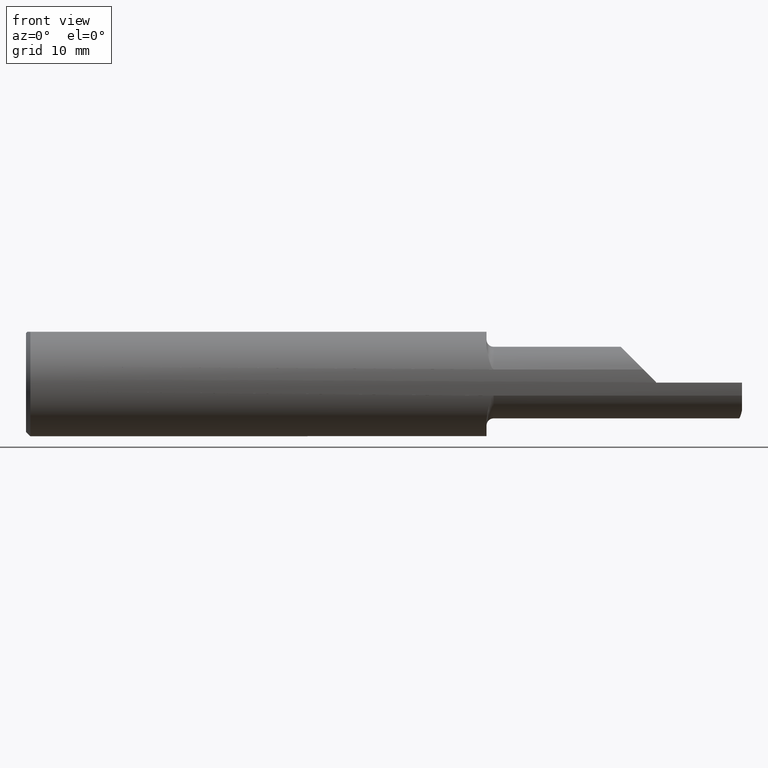
[diagram: clean part render]
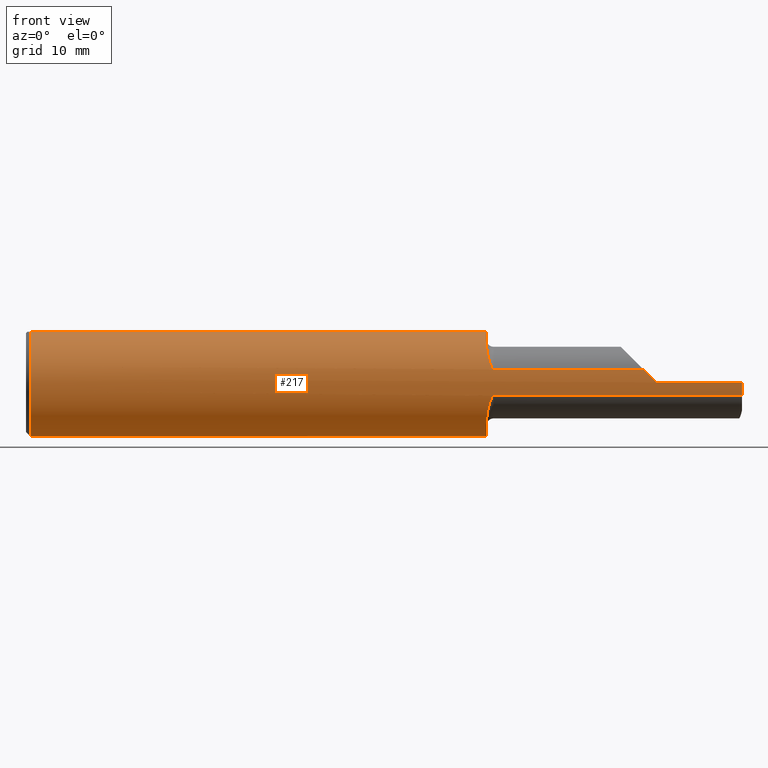
[diagram: same view with one face highlighted and labeled with its STEP entity id]
A machine part, front view. The second image highlights one B-rep face of the part: STEP entity #217.
In plain terms, the highlighted cylindrical surface (partial cylindrical patch) has radius 4.7587 mm, axis along (-1, -0, -0).
Its self-contained STEP definition (entity closure, byte-faithful):
#14 = DIRECTION ( 'NONE',  ( 1.000000000000000000, 0.000000000000000000, 0.000000000000000000 ) ) ;
#30 = EDGE_CURVE ( 'NONE', #373, #717, #626, .T. ) ;
#35 = CARTESIAN_POINT ( 'NONE',  ( 2.200000000000000178, 0.000000000000000000, 0.000000000000000000 ) ) ;
#58 = CARTESIAN_POINT ( 'NONE',  ( 2.155609336774261919, -0.1816805279265492068, 0.04574066322573761001 ) ) ;
#63 = CARTESIAN_POINT ( 'NONE',  ( 1.617242766001949938, -0.1712683263405276046, -0.07645797409013629919 ) ) ;
#74 = CARTESIAN_POINT ( 'NONE',  ( 1.625471878265903669, -0.1794901087543955276, -0.05373940346778428856 ) ) ;
#78 = DIRECTION ( 'NONE',  ( 0.000000000000000000, 0.000000000000000000, -1.000000000000000000 ) ) ;
#85 = LINE ( 'NONE', #121, #283 ) ;
#121 = CARTESIAN_POINT ( 'NONE',  ( 2.500000000000000000, 0.06039039658753697637, 0.1773499999999999799 ) ) ;
#123 = ORIENTED_EDGE ( 'NONE', *, *, #181, .F. ) ;
#129 =( BOUNDED_CURVE ( )  B_SPLINE_CURVE ( 3, ( #237, #215, #759, #58 ),
 .UNSPECIFIED., .F., .T. ) 
 B_SPLINE_CURVE_WITH_KNOTS ( ( 4, 4 ),
 ( 4.719594807355369959, 4.959027430676237636 ),
 .UNSPECIFIED. ) 
 CURVE ( )  GEOMETRIC_REPRESENTATION_ITEM ( )  RATIONAL_B_SPLINE_CURVE ( ( 1.000000000000000000, 0.9952283712403751093, 0.9952283712403751093, 1.000000000000000000 ) ) 
 REPRESENTATION_ITEM ( '' )  );
#131 = ORIENTED_EDGE ( 'NONE', *, *, #768, .F. ) ;
#137 = CARTESIAN_POINT ( 'NONE',  ( 1.631817590302756749, -0.1816805279265500950, -0.04574066322574452809 ) ) ;
#146 = CARTESIAN_POINT ( 'NONE',  ( 1.608000000000000096, -0.1358364408402822077, -0.1293653927267006953 ) ) ;
#147 = ORIENTED_EDGE ( 'NONE', *, *, #369, .F. ) ;
#165 = DIRECTION ( 'NONE',  ( 1.000000000000000000, 0.000000000000000000, 0.000000000000000000 ) ) ;
#173 = CARTESIAN_POINT ( 'NONE',  ( 1.610356402887169525, -0.1533523090637235464, 0.1080176704948173638 ) ) ;
#181 = EDGE_CURVE ( 'NONE', #845, #520, #899, .T. ) ;
#199 = CARTESIAN_POINT ( 'NONE',  ( 2.200000000000000178, -0.1873451360457484560, 0.001349999999999087824 ) ) ;
#214 = VERTEX_POINT ( 'NONE', #613 ) ;
#215 = CARTESIAN_POINT ( 'NONE',  ( 2.185011993843769318, -0.1872371331974334585, 0.01633800615622983676 ) ) ;
#217 = ADVANCED_FACE ( 'NONE', ( #756 ), #466, .T. ) ;
#224 = CARTESIAN_POINT ( 'NONE',  ( 1.615157939458078395, -0.1674139084628467611, -0.08459198811596614631 ) ) ;
#237 = CARTESIAN_POINT ( 'NONE',  ( 2.200000000000000178, -0.1873451360457484560, 0.001349999999999087824 ) ) ;
#241 = CARTESIAN_POINT ( 'NONE',  ( 1.631803717416865807, -0.1816805279265493456, 0.04574066322573741572 ) ) ;
#242 = CARTESIAN_POINT ( 'NONE',  ( 2.500000000000000000, -0.1873499999999999610, -3.979970649922724610E-17 ) ) ;
#248 = CARTESIAN_POINT ( 'NONE',  ( 1.626447111503740217, -0.1800702390342965031, 0.05175562241491477034 ) ) ;
#250 = AXIS2_PLACEMENT_3D ( 'NONE', #295, #605, #780 ) ;
#252 = ORIENTED_EDGE ( 'NONE', *, *, #936, .T. ) ;
#259 = DIRECTION ( 'NONE',  ( 0.000000000000000000, 0.000000000000000000, -1.000000000000000000 ) ) ;
#263 = ORIENTED_EDGE ( 'NONE', *, *, #791, .T. ) ;
#275 = DIRECTION ( 'NONE',  ( 0.000000000000000000, 0.000000000000000000, -1.000000000000000000 ) ) ;
#283 = VECTOR ( 'NONE', #980, 39.37007874015748143 ) ;
#291 = EDGE_CURVE ( 'NONE', #845, #373, #800, .T. ) ;
#295 = CARTESIAN_POINT ( 'NONE',  ( 2.500000000000000000, 0.000000000000000000, 0.000000000000000000 ) ) ;
#297 = CARTESIAN_POINT ( 'NONE',  ( 2.500000000000000000, -0.06039039658753697637, 0.1773499999999999799 ) ) ;
#300 = CARTESIAN_POINT ( 'NONE',  ( 2.500000000000000000, 0.000000000000000000, 0.000000000000000000 ) ) ;
#304 = AXIS2_PLACEMENT_3D ( 'NONE', #300, #534, #311 ) ;
#310 = VERTEX_POINT ( 'NONE', #333 ) ;
#311 = DIRECTION ( 'NONE',  ( 0.000000000000000000, 0.000000000000000000, -1.000000000000000000 ) ) ;
#314 = VERTEX_POINT ( 'NONE', #861 ) ;
#325 = CARTESIAN_POINT ( 'NONE',  ( 2.200000000000000178, -0.1873499999999999888, -3.979970649922726459E-17 ) ) ;
#333 = CARTESIAN_POINT ( 'NONE',  ( 1.632999999999999785, -0.1816805279265493456, -0.04574066322573741572 ) ) ;
#351 = CARTESIAN_POINT ( 'NONE',  ( 1.632999999999999785, -0.1816805279265493456, 0.04574066322573741572 ) ) ;
#356 = ORIENTED_EDGE ( 'NONE', *, *, #291, .T. ) ;
#367 = CARTESIAN_POINT ( 'NONE',  ( 0.01499999999999970281, 0.000000000000000000, 0.000000000000000000 ) ) ;
#369 = EDGE_CURVE ( 'NONE', #532, #214, #401, .T. ) ;
#373 = VERTEX_POINT ( 'NONE', #325 ) ;
#375 = CARTESIAN_POINT ( 'NONE',  ( 1.607999999999999874, -0.1290791507268553850, 0.1357887894770173631 ) ) ;
#379 = CARTESIAN_POINT ( 'NONE',  ( 1.628366350430950238, -0.1808668743673179924, -0.04886876118085551474 ) ) ;
#381 = CARTESIAN_POINT ( 'NONE',  ( 1.935500000000000220, -0.1816805279265493456, -0.04574066322573741572 ) ) ;
#386 = DIRECTION ( 'NONE',  ( -1.000000000000000000, -0.000000000000000000, -0.000000000000000000 ) ) ;
#396 = CARTESIAN_POINT ( 'NONE',  ( 1.629038611304518325, -0.1811041330649479364, 0.04797886786269605491 ) ) ;
#398 = EDGE_CURVE ( 'NONE', #644, #977, #479, .T. ) ;
#401 = LINE ( 'NONE', #712, #880 ) ;
#406 = CARTESIAN_POINT ( 'NONE',  ( 1.630736562170378656, -0.1815122776378730873, 0.04641090218153611641 ) ) ;
#408 = ORIENTED_EDGE ( 'NONE', *, *, #580, .F. ) ;
#412 = CARTESIAN_POINT ( 'NONE',  ( 1.628346106735896859, -0.1808597239496785025, 0.04889540865154969052 ) ) ;
#419 = B_SPLINE_CURVE_WITH_KNOTS ( 'NONE', 3,
 ( #920, #146, #689, #602, #464, #224, #63, #778, #682, #74, #836, #379, #696, #454, #137, #908 ),
 .UNSPECIFIED., .F., .F.,
 ( 4, 2, 2, 2, 2, 2, 2, 4 ),
 ( 0.000000000000000000, 0.0007010516798009792418, 0.001402103359601958484, 0.002103155039402938159, 0.002453680879303427997, 0.002628943799253673132, 0.002716575259228789629, 0.002804206719203906559 ),
 .UNSPECIFIED. ) ;
#451 = LINE ( 'NONE', #381, #750 ) ;
#454 = CARTESIAN_POINT ( 'NONE',  ( 1.630757828336039106, -0.1815159194173287527, -0.04639655467506106218 ) ) ;
#464 = CARTESIAN_POINT ( 'NONE',  ( 1.611681773380125193, -0.1584047100801144747, -0.1004548108586795774 ) ) ;
#466 = CYLINDRICAL_SURFACE ( 'NONE', #250, 0.1873499999999999888 ) ;
#471 = DIRECTION ( 'NONE',  ( 0.000000000000000000, 0.000000000000000000, -1.000000000000000000 ) ) ;
#479 = CIRCLE ( 'NONE', #918, 0.1873499999999999888 ) ;
#483 = CARTESIAN_POINT ( 'NONE',  ( 1.608507463316945163, -0.1420253514571687414, 0.1225297815952122588 ) ) ;
#486 = CARTESIAN_POINT ( 'NONE',  ( 1.625456448377851970, -0.1794802708211542253, 0.05377185297669068859 ) ) ;
#506 = CARTESIAN_POINT ( 'NONE',  ( 2.500000000000000000, -0.1816805279265493456, -0.04574066322573741572 ) ) ;
#507 = ORIENTED_EDGE ( 'NONE', *, *, #659, .T. ) ;
#520 = VERTEX_POINT ( 'NONE', #506 ) ;
#531 = LINE ( 'NONE', #297, #610 ) ;
#532 = VERTEX_POINT ( 'NONE', #351 ) ;
#534 = DIRECTION ( 'NONE',  ( 1.000000000000000000, 0.000000000000000000, 0.000000000000000000 ) ) ;
#545 = DIRECTION ( 'NONE',  ( -1.000000000000000000, -0.000000000000000000, -0.000000000000000000 ) ) ;
#551 = CARTESIAN_POINT ( 'NONE',  ( 1.607999999999999874, 0.000000000000000000, 0.000000000000000000 ) ) ;
#554 = CARTESIAN_POINT ( 'NONE',  ( 0.01499999999999970281, 0.06039039658753697637, 0.1773499999999999799 ) ) ;
#558 = CARTESIAN_POINT ( 'NONE',  ( 1.622714394919972714, -0.1775724809961186368, 0.05988543762226175571 ) ) ;
#562 = CARTESIAN_POINT ( 'NONE',  ( 1.615165066739707944, -0.1674210122097407327, 0.08457025362359736620 ) ) ;
#566 = CARTESIAN_POINT ( 'NONE',  ( 1.632999999999999785, -0.1816805279265493456, 0.04574066322573741572 ) ) ;
#574 = ORIENTED_EDGE ( 'NONE', *, *, #863, .T. ) ;
#580 = EDGE_CURVE ( 'NONE', #520, #310, #451, .T. ) ;
#586 = VERTEX_POINT ( 'NONE', #698 ) ;
#588 = VERTEX_POINT ( 'NONE', #375 ) ;
#594 = CARTESIAN_POINT ( 'NONE',  ( 0.01499999999999970281, 0.000000000000000000, 0.000000000000000000 ) ) ;
#599 = ORIENTED_EDGE ( 'NONE', *, *, #30, .T. ) ;
#602 = CARTESIAN_POINT ( 'NONE',  ( 1.610343370590518797, -0.1532864254495102385, -0.1081069623110098438 ) ) ;
#605 = DIRECTION ( 'NONE',  ( -1.000000000000000000, -0.000000000000000000, -0.000000000000000000 ) ) ;
#610 = VECTOR ( 'NONE', #545, 39.37007874015748143 ) ;
#613 = CARTESIAN_POINT ( 'NONE',  ( 2.155609336774261919, -0.1816805279265492068, 0.04574066322573761001 ) ) ;
#615 = CARTESIAN_POINT ( 'NONE',  ( 1.607999999999999874, 0.000000000000000000, 0.000000000000000000 ) ) ;
#626 = CIRCLE ( 'NONE', #963, 0.1873499999999999888 ) ;
#637 = CIRCLE ( 'NONE', #928, 0.1873499999999999888 ) ;
#638 = CARTESIAN_POINT ( 'NONE',  ( 1.607999999999999874, -0.1290791507268553850, -0.1357887894770173631 ) ) ;
#644 = VERTEX_POINT ( 'NONE', #751 ) ;
#659 = EDGE_CURVE ( 'NONE', #905, #644, #691, .T. ) ;
#671 = DIRECTION ( 'NONE',  ( 1.000000000000000000, -0.000000000000000000, -0.000000000000000000 ) ) ;
#678 = ORIENTED_EDGE ( 'NONE', *, *, #968, .F. ) ;
#682 = CARTESIAN_POINT ( 'NONE',  ( 1.622714244929361005, -0.1775741566219413703, -0.05988189962716813919 ) ) ;
#689 = CARTESIAN_POINT ( 'NONE',  ( 1.608508120371015870, -0.1420153276512569618, -0.1225377094583886550 ) ) ;
#691 = CIRCLE ( 'NONE', #959, 0.1873499999999999888 ) ;
#696 = CARTESIAN_POINT ( 'NONE',  ( 1.629060832777568413, -0.1811109074190623003, -0.04795319073302586887 ) ) ;
#698 = CARTESIAN_POINT ( 'NONE',  ( 1.607999999999999874, -0.06039039658755174234, 0.1773499999999999799 ) ) ;
#710 = CARTESIAN_POINT ( 'NONE',  ( 1.607999999999999874, -0.1290791507268553850, 0.1357887894770173631 ) ) ;
#712 = CARTESIAN_POINT ( 'NONE',  ( 1.935500000000000220, -0.1816805279265493456, 0.04574066322573741572 ) ) ;
#717 = VERTEX_POINT ( 'NONE', #199 ) ;
#718 = CARTESIAN_POINT ( 'NONE',  ( 1.607999999999999430, -0.1358297317783274394, 0.1293717702783574452 ) ) ;
#732 = DIRECTION ( 'NONE',  ( 1.000000000000000000, -0.000000000000000000, -0.000000000000000000 ) ) ;
#743 = ORIENTED_EDGE ( 'NONE', *, *, #990, .T. ) ;
#750 = VECTOR ( 'NONE', #386, 39.37007874015748143 ) ;
#751 = CARTESIAN_POINT ( 'NONE',  ( 0.01499999999999970281, 0.000000000000000000, -0.1873499999999999888 ) ) ;
#756 = FACE_OUTER_BOUND ( 'NONE', #882, .T. ) ;
#759 = CARTESIAN_POINT ( 'NONE',  ( 2.170144162329409543, -0.1853398774911412805, 0.03120583767058981300 ) ) ;
#768 = EDGE_CURVE ( 'NONE', #949, #314, #773, .T. ) ;
#773 = CIRCLE ( 'NONE', #913, 0.1873499999999999888 ) ;
#778 = CARTESIAN_POINT ( 'NONE',  ( 1.621243155597560825, -0.1761103983034254250, -0.06406878988066037894 ) ) ;
#780 = DIRECTION ( 'NONE',  ( 0.000000000000000000, 0.000000000000000000, 1.000000000000000000 ) ) ;
#791 = EDGE_CURVE ( 'NONE', #949, #310, #419, .T. ) ;
#800 = LINE ( 'NONE', #242, #984 ) ;
#806 = DIRECTION ( 'NONE',  ( -1.000000000000000000, -0.000000000000000000, -0.000000000000000000 ) ) ;
#813 = EDGE_CURVE ( 'NONE', #717, #214, #129, .T. ) ;
#836 = CARTESIAN_POINT ( 'NONE',  ( 1.626477950225053037, -0.1800855208038182886, -0.05170170159514014124 ) ) ;
#845 = VERTEX_POINT ( 'NONE', #924 ) ;
#861 = CARTESIAN_POINT ( 'NONE',  ( 1.607999999999999874, 0.06039039658753698331, 0.1773499999999999799 ) ) ;
#863 = EDGE_CURVE ( 'NONE', #586, #905, #531, .T. ) ;
#870 = CARTESIAN_POINT ( 'NONE',  ( 1.617239251373390196, -0.1712625384217544844, 0.07647091574860637175 ) ) ;
#872 = DIRECTION ( 'NONE',  ( -1.000000000000000000, -0.000000000000000000, -0.000000000000000000 ) ) ;
#874 = CARTESIAN_POINT ( 'NONE',  ( 1.621238439611428550, -0.1761054551189537298, 0.06408236932159688815 ) ) ;
#880 = VECTOR ( 'NONE', #14, 39.37007874015748143 ) ;
#882 = EDGE_LOOP ( 'NONE', ( #408, #123, #356, #599, #955, #147, #252, #678, #574, #507, #909, #743, #131, #263 ) ) ;
#899 = CIRCLE ( 'NONE', #304, 0.1873499999999999888 ) ;
#905 = VERTEX_POINT ( 'NONE', #944 ) ;
#908 = CARTESIAN_POINT ( 'NONE',  ( 1.632999999999999785, -0.1816805279265493456, -0.04574066322573741572 ) ) ;
#909 = ORIENTED_EDGE ( 'NONE', *, *, #398, .T. ) ;
#913 = AXIS2_PLACEMENT_3D ( 'NONE', #615, #994, #78 ) ;
#918 = AXIS2_PLACEMENT_3D ( 'NONE', #594, #732, #259 ) ;
#920 = CARTESIAN_POINT ( 'NONE',  ( 1.607999999999999874, -0.1290791507268553850, -0.1357887894770173631 ) ) ;
#924 = CARTESIAN_POINT ( 'NONE',  ( 2.500000000000000000, -0.1873500000000000165, -3.979970649922726459E-17 ) ) ;
#928 = AXIS2_PLACEMENT_3D ( 'NONE', #551, #165, #471 ) ;
#931 = B_SPLINE_CURVE_WITH_KNOTS ( 'NONE', 3,
 ( #566, #241, #406, #396, #412, #248, #486, #558, #874, #870, #562, #948, #173, #483, #718, #710 ),
 .UNSPECIFIED., .F., .F.,
 ( 4, 2, 2, 2, 2, 2, 2, 4 ),
 ( 0.000000000000000000, 8.953925068334312712E-05, 0.0001790785013666862542, 0.0003581570027333618291, 0.0007163140054667117319, 0.001432628010933411321, 0.002148942016400111343, 0.002865256021866811366 ),
 .UNSPECIFIED. ) ;
#936 = EDGE_CURVE ( 'NONE', #532, #588, #931, .T. ) ;
#944 = CARTESIAN_POINT ( 'NONE',  ( 0.01499999999999283677, -0.06039039658755173540, 0.1773499999999999799 ) ) ;
#948 = CARTESIAN_POINT ( 'NONE',  ( 1.611710439827053865, -0.1584902558649207982, 0.1003133187725622905 ) ) ;
#949 = VERTEX_POINT ( 'NONE', #638 ) ;
#955 = ORIENTED_EDGE ( 'NONE', *, *, #813, .T. ) ;
#959 = AXIS2_PLACEMENT_3D ( 'NONE', #367, #671, #275 ) ;
#963 = AXIS2_PLACEMENT_3D ( 'NONE', #35, #806, #979 ) ;
#968 = EDGE_CURVE ( 'NONE', #586, #588, #637, .T. ) ;
#977 = VERTEX_POINT ( 'NONE', #554 ) ;
#979 = DIRECTION ( 'NONE',  ( 0.000000000000000000, 0.000000000000000000, 1.000000000000000000 ) ) ;
#980 = DIRECTION ( 'NONE',  ( 1.000000000000000000, 0.000000000000000000, 0.000000000000000000 ) ) ;
#984 = VECTOR ( 'NONE', #872, 39.37007874015748143 ) ;
#990 = EDGE_CURVE ( 'NONE', #977, #314, #85, .T. ) ;
#994 = DIRECTION ( 'NONE',  ( 1.000000000000000000, 0.000000000000000000, 0.000000000000000000 ) ) ;